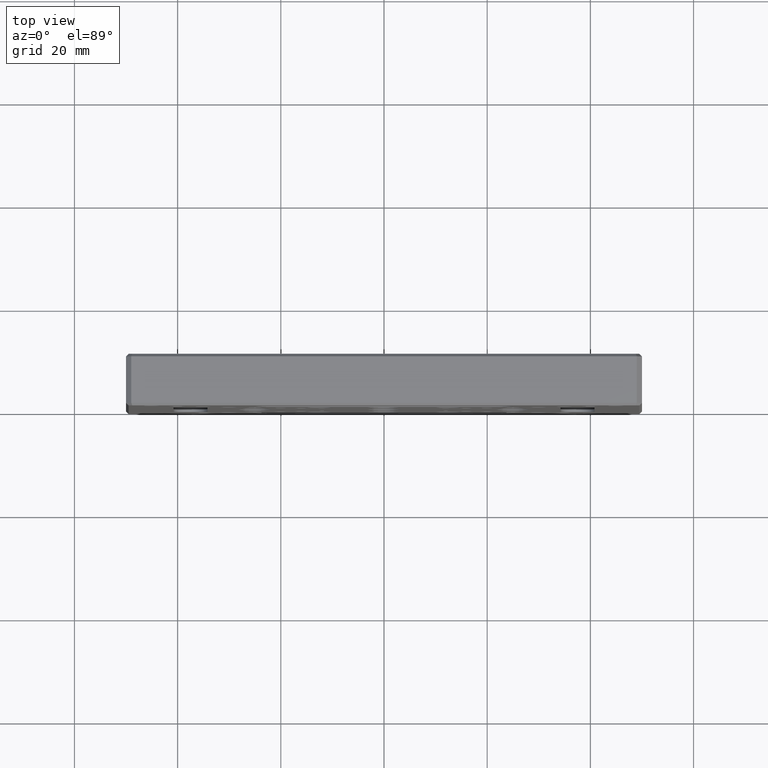
[diagram: clean part render]
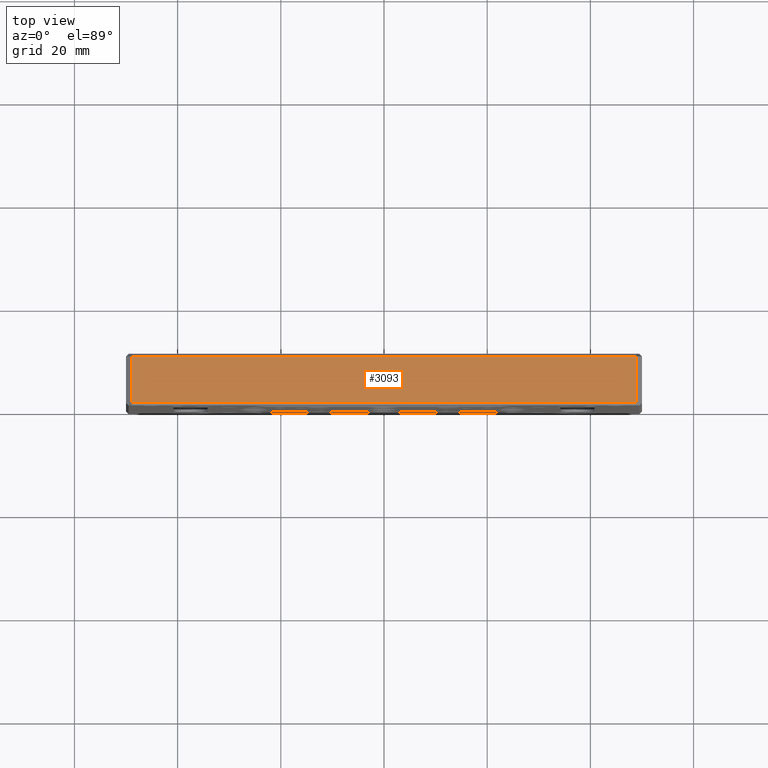
[diagram: same view with one face highlighted and labeled with its STEP entity id]
A machine part, top view. The second image highlights one B-rep face of the part: STEP entity #3093.
In plain terms, the highlighted planar face has unit normal (0, 0, -1).
Its self-contained STEP definition (entity closure, byte-faithful):
#92 = CARTESIAN_POINT ( 'NONE',  ( -49.99999999999999289, 0.5000000000000004441, 50.00000000000001421 ) ) ;
#236 = EDGE_CURVE ( 'NONE', #3900, #1247, #3868, .T. ) ;
#342 = DIRECTION ( 'NONE',  ( -1.000000000000000000, 0.000000000000000000, 0.000000000000000000 ) ) ;
#644 = DIRECTION ( 'NONE',  ( 0.000000000000000000, 0.000000000000000000, -1.000000000000000000 ) ) ;
#685 = FACE_OUTER_BOUND ( 'NONE', #2206, .T. ) ;
#686 = DIRECTION ( 'NONE',  ( 0.000000000000000000, 1.000000000000000000, 0.000000000000000000 ) ) ;
#737 = PLANE ( 'NONE',  #3729 ) ;
#818 = ORIENTED_EDGE ( 'NONE', *, *, #4759, .T. ) ;
#932 = ORIENTED_EDGE ( 'NONE', *, *, #4117, .T. ) ;
#946 = LINE ( 'NONE', #92, #2646 ) ;
#1169 = LINE ( 'NONE', #2713, #4524 ) ;
#1180 = VECTOR ( 'NONE', #342, 1000.000000000000000 ) ;
#1247 = VERTEX_POINT ( 'NONE', #1533 ) ;
#1294 = DIRECTION ( 'NONE',  ( 1.000000000000000000, 0.000000000000000000, 0.000000000000000000 ) ) ;
#1533 = CARTESIAN_POINT ( 'NONE',  ( 48.99999999999999289, 9.500000000000000000, 50.00000000000001421 ) ) ;
#2206 = EDGE_LOOP ( 'NONE', ( #3562, #818, #2403, #932 ) ) ;
#2403 = ORIENTED_EDGE ( 'NONE', *, *, #236, .T. ) ;
#2447 = VERTEX_POINT ( 'NONE', #3111 ) ;
#2449 = EDGE_CURVE ( 'NONE', #4543, #2447, #1169, .T. ) ;
#2646 = VECTOR ( 'NONE', #1294, 1000.000000000000000 ) ;
#2685 = VECTOR ( 'NONE', #686, 1000.000000000000000 ) ;
#2713 = CARTESIAN_POINT ( 'NONE',  ( -48.99999999999999289, 10.00000000000000000, 50.00000000000001421 ) ) ;
#2855 = CARTESIAN_POINT ( 'NONE',  ( 48.99999999999999289, 0.5000000000000004441, 50.00000000000001421 ) ) ;
#3002 = CARTESIAN_POINT ( 'NONE',  ( 48.99999999999999289, 10.00000000000000000, 50.00000000000001421 ) ) ;
#3093 = ADVANCED_FACE ( 'NONE', ( #685 ), #737, .F. ) ;
#3111 = CARTESIAN_POINT ( 'NONE',  ( -48.99999999999999289, 0.5000000000000004441, 50.00000000000001421 ) ) ;
#3425 = LINE ( 'NONE', #4984, #1180 ) ;
#3562 = ORIENTED_EDGE ( 'NONE', *, *, #2449, .T. ) ;
#3729 = AXIS2_PLACEMENT_3D ( 'NONE', #4233, #644, #3748 ) ;
#3748 = DIRECTION ( 'NONE',  ( -1.000000000000000000, 0.000000000000000000, -0.000000000000000000 ) ) ;
#3868 = LINE ( 'NONE', #3002, #2685 ) ;
#3900 = VERTEX_POINT ( 'NONE', #2855 ) ;
#4117 = EDGE_CURVE ( 'NONE', #1247, #4543, #3425, .T. ) ;
#4148 = CARTESIAN_POINT ( 'NONE',  ( -48.99999999999999289, 9.500000000000000000, 50.00000000000001421 ) ) ;
#4233 = CARTESIAN_POINT ( 'NONE',  ( -49.99999999999999289, 10.00000000000000000, 50.00000000000001421 ) ) ;
#4295 = DIRECTION ( 'NONE',  ( 0.000000000000000000, -1.000000000000000000, 0.000000000000000000 ) ) ;
#4524 = VECTOR ( 'NONE', #4295, 1000.000000000000000 ) ;
#4543 = VERTEX_POINT ( 'NONE', #4148 ) ;
#4759 = EDGE_CURVE ( 'NONE', #2447, #3900, #946, .T. ) ;
#4984 = CARTESIAN_POINT ( 'NONE',  ( -48.99999999999999289, 9.500000000000000000, 50.00000000000001421 ) ) ;